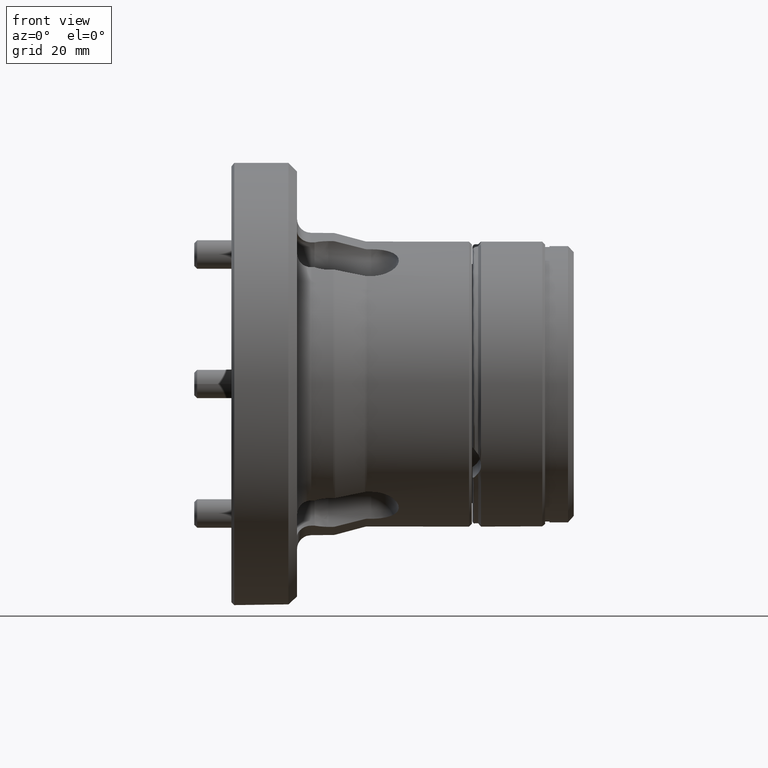
[diagram: clean part render]
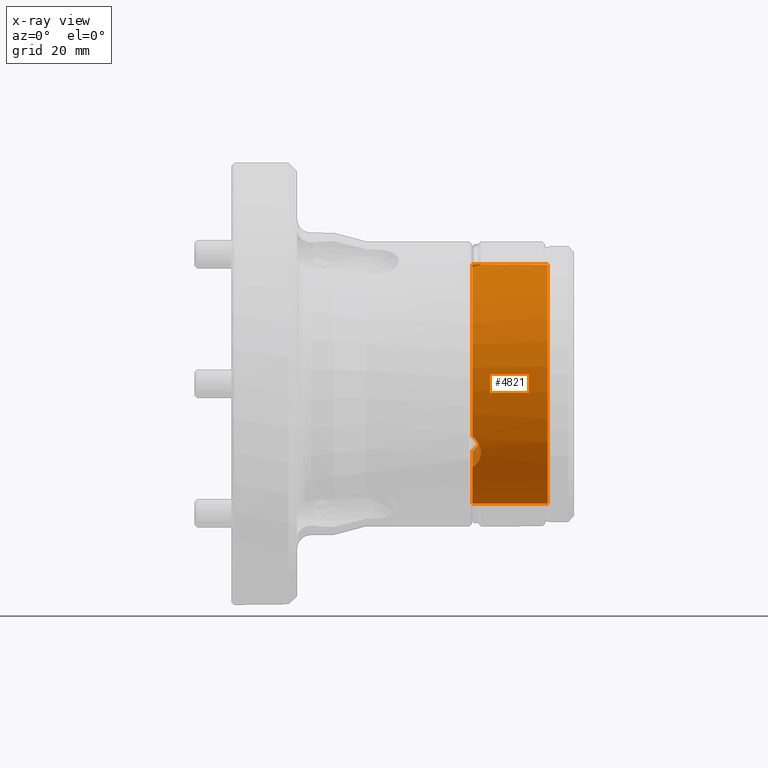
[diagram: x-ray — body ghosted, one internal face saturated and labeled with its STEP entity id]
A machine part, front view, then the same camera in x-ray: the body is ghosted and one INTERNAL B-rep face — a face not visible from any outside direction — is saturated and labeled: STEP entity #4821.
In plain terms, the highlighted cylindrical surface (bore or boss wall) has radius 42 mm, axis along (-1, 0, 0).
Its self-contained STEP definition (entity closure, byte-faithful):
#107 = VERTEX_POINT ( 'NONE', #5242 ) ;
#246 = DIRECTION ( 'NONE',  ( 2.292773743318137985E-32, -1.000000000000000000, 0.0000000000000000000 ) ) ;
#256 = CARTESIAN_POINT ( 'NONE',  ( 8.673617379884043361E-16, 2.839378726258164676, 41.90391304459373600 ) ) ;
#339 = VERTEX_POINT ( 'NONE', #4466 ) ;
#390 = CARTESIAN_POINT ( 'NONE',  ( 2.667878591648814801, 36.97720616076283306, -19.92605619728466237 ) ) ;
#391 = CARTESIAN_POINT ( 'NONE',  ( 2.665506820440516567, 39.03602933637022687, -15.50979453677652131 ) ) ;
#397 = CARTESIAN_POINT ( 'NONE',  ( 1.937701639174540746, 39.62537986844854032, -13.92479757405781271 ) ) ;
#404 = CARTESIAN_POINT ( 'NONE',  ( 2.082533809798257973, 39.53375153719124313, -14.18309676424087229 ) ) ;
#465 = EDGE_CURVE ( 'NONE', #2198, #2198, #2682, .T. ) ;
#543 = CARTESIAN_POINT ( 'NONE',  ( 8.673617379884045333E-16, -37.70954257772128670, -18.49298241439236890 ) ) ;
#588 = CARTESIAN_POINT ( 'NONE',  ( 8.673617379884045333E-16, -37.70954257772128670, -18.49298241439236890 ) ) ;
#861 = EDGE_LOOP ( 'NONE', ( #2481 ) ) ;
#1008 = CARTESIAN_POINT ( 'NONE',  ( 1.450134893889020837, 1.248693292809842204, 41.98214647024642687 ) ) ;
#1086 = AXIS2_PLACEMENT_3D ( 'NONE', #3584, #3583, #3596 ) ;
#1170 = EDGE_CURVE ( 'NONE', #2092, #2636, #4520, .T. ) ;
#1291 = EDGE_CURVE ( 'NONE', #2636, #1565, #4014, .T. ) ;
#1445 = CARTESIAN_POINT ( 'NONE',  ( 1.618605562965832467, -8.275542649421765873, 41.17749520132245777 ) ) ;
#1456 = CARTESIAN_POINT ( 'NONE',  ( 8.673617379884045333E-16, 34.87016385146309716, -23.41093063020170106 ) ) ;
#1565 = VERTEX_POINT ( 'NONE', #2293 ) ;
#1582 = EDGE_CURVE ( 'NONE', #107, #339, #5772, .T. ) ;
#1769 = CARTESIAN_POINT ( 'NONE',  ( 0.0000000000000000000, 0.0000000000000000000, 0.0000000000000000000 ) ) ;
#1815 = CIRCLE ( 'NONE', #5402, 42.00000000000000000 ) ;
#1827 = CARTESIAN_POINT ( 'NONE',  ( 8.673617379884047305E-16, -10.07278032066444595, 40.77424550634426481 ) ) ;
#1844 = CARTESIAN_POINT ( 'NONE',  ( 0.8911029787517211753, -9.243289776285394055, 40.97317452265481563 ) ) ;
#1878 = AXIS2_PLACEMENT_3D ( 'NONE', #4852, #4865, #4870 ) ;
#1970 = CARTESIAN_POINT ( 'NONE',  ( 0.2357406689790666476, -37.62038403959162736, -18.67478801039787228 ) ) ;
#1993 = CARTESIAN_POINT ( 'NONE',  ( 0.4714787261891488779, -9.679620158274744313, 40.87137093190173687 ) ) ;
#2012 = CARTESIAN_POINT ( 'NONE',  ( 8.673617379884045333E-16, 1.882228669079012936E-47, 0.0000000000000000000 ) ) ;
#2092 = VERTEX_POINT ( 'NONE', #3871 ) ;
#2198 = VERTEX_POINT ( 'NONE', #4189 ) ;
#2241 = CARTESIAN_POINT ( 'NONE',  ( 2.999842173055811578, -3.970111018524689062, 41.81306140658697501 ) ) ;
#2265 = CARTESIAN_POINT ( 'NONE',  ( 2.983166283999587165, -4.274655597858379785, 41.78301992225243566 ) ) ;
#2291 = CARTESIAN_POINT ( 'NONE',  ( 1.937701639174542301, -7.753461492534477806, 41.27898438771378409 ) ) ;
#2293 = CARTESIAN_POINT ( 'NONE',  ( 8.673617379884047305E-16, -10.07278032066444595, 40.77424550634426481 ) ) ;
#2300 = CARTESIAN_POINT ( 'NONE',  ( 2.866657498069982601, 37.39362463275006832, -19.12608714774698981 ) ) ;
#2301 = CARTESIAN_POINT ( 'NONE',  ( 2.983794661136925708, 37.80462560371881153, -18.30040205193384040 ) ) ;
#2325 = FACE_OUTER_BOUND ( 'NONE', #861, .T. ) ;
#2336 = CARTESIAN_POINT ( 'NONE',  ( 1.080770530970819321, 1.737698533473676088, 41.96475021962477570 ) ) ;
#2337 = CARTESIAN_POINT ( 'NONE',  ( 2.468987220615908473, -6.659887958487420434, 41.47236272619583985 ) ) ;
#2379 = CARTESIAN_POINT ( 'NONE',  ( 3.000155603421378991, -3.359633059515569897, 41.86653498196184842 ) ) ;
#2403 = CARTESIAN_POINT ( 'NONE',  ( 2.082533809798260194, -7.483953666430347873, 41.32878152023011609 ) ) ;
#2417 = CARTESIAN_POINT ( 'NONE',  ( 2.916450287883300962, -4.882352779537368015, 41.71637646823834444 ) ) ;
#2432 = CARTESIAN_POINT ( 'NONE',  ( 2.865977059322940335, -5.187291661979335444, 41.67953134866449005 ) ) ;
#2437 = CARTESIAN_POINT ( 'NONE',  ( 2.665506820440519675, -6.086138591859743485, 41.56109033655945950 ) ) ;
#2445 = CARTESIAN_POINT ( 'NONE',  ( 1.446118673656848763, -8.525466339185417297, 41.12634536142853392 ) ) ;
#2481 = ORIENTED_EDGE ( 'NONE', *, *, #465, .F. ) ;
#2534 = ORIENTED_EDGE ( 'NONE', *, *, #6066, .T. ) ;
#2574 = ORIENTED_EDGE ( 'NONE', *, *, #1170, .T. ) ;
#2589 = CARTESIAN_POINT ( 'NONE',  ( 0.8830160998043133924, -37.31968716712412260, -19.26892926355393243 ) ) ;
#2608 = CARTESIAN_POINT ( 'NONE',  ( 1.621744383212700757, -36.86081485233482624, -20.13330873628357764 ) ) ;
#2616 = CARTESIAN_POINT ( 'NONE',  ( 1.450134893889021059, -36.98195199503744135, -19.90967312201482642 ) ) ;
#2625 = CARTESIAN_POINT ( 'NONE',  ( 2.084229441425580198, -36.46869299896007988, -20.83538154775251527 ) ) ;
#2636 = VERTEX_POINT ( 'NONE', #588 ) ;
#2640 = CARTESIAN_POINT ( 'NONE',  ( 1.938433398632788407, -36.60462905098884789, -20.59541027239139410 ) ) ;
#2642 = CARTESIAN_POINT ( 'NONE',  ( 2.667878591648815689, -35.74507394446607123, -22.06017179755306046 ) ) ;
#2665 = B_SPLINE_CURVE_WITH_KNOTS ( 'NONE', 3,
 ( #1827, #1993, #1844, #2445, #1445, #2291, #2403, #2337, #2437, #2432, #2417, #2265, #2241, #2379, #3949, #3972, #3959, #3999, #3980, #4007, #4042, #4031, #1008, #2336, #4258, #4101, #4069, #3555 ),
 .UNSPECIFIED., .F., .F.,
 ( 4, 2, 2, 2, 2, 2, 2, 2, 2, 2, 2, 2, 2, 4 ),
 ( 4.276072667970783845E-18, 0.001838371371957674182, 0.002757557057936509213, 0.003676742743915341425, 0.005515114115873006283, 0.006434299801851839362, 0.007353485487830670707, 0.008272671173809500317, 0.009191856859788332529, 0.01103022823174599869, 0.01194941391772483263, 0.01286859960370366658, 0.01378778528968250053, 0.01470697097566133274 ),
 .UNSPECIFIED. ) ;
#2682 = CIRCLE ( 'NONE', #1878, 42.00000000000000000 ) ;
#2728 = CARTESIAN_POINT ( 'NONE',  ( 1.080770530970819765, -37.21138902040038943, -19.47748403570538756 ) ) ;
#2738 = ORIENTED_EDGE ( 'NONE', *, *, #1291, .T. ) ;
#2740 = CARTESIAN_POINT ( 'NONE',  ( 2.916450287883301851, -33.68626538556096506, -25.08642977143625785 ) ) ;
#2760 = CARTESIAN_POINT ( 'NONE',  ( 2.983166283999588497, -34.04782890057260403, -24.59347030130108891 ) ) ;
#2763 = ORIENTED_EDGE ( 'NONE', *, *, #3825, .T. ) ;
#2766 = CARTESIAN_POINT ( 'NONE',  ( 2.468987220615906253, -32.58617569660459878, -26.50381352150625958 ) ) ;
#2767 = CARTESIAN_POINT ( 'NONE',  ( 2.865977059322939446, -33.50188713478353719, -25.33209203044570756 ) ) ;
#2774 = CARTESIAN_POINT ( 'NONE',  ( 2.082533809798256641, -32.04979787076083397, -27.14568475598957775 ) ) ;
#2784 = CARTESIAN_POINT ( 'NONE',  ( 2.665506820440517455, -32.94989074451044786, -26.05129579978327570 ) ) ;
#2794 = CARTESIAN_POINT ( 'NONE',  ( 1.618605562965829803, -31.52298558384605087, -27.75557776516221509 ) ) ;
#2797 = ORIENTED_EDGE ( 'NONE', *, *, #4985, .T. ) ;
#2800 = CARTESIAN_POINT ( 'NONE',  ( 2.472392160020417506, -36.04634480654520701, -21.56329750430013092 ) ) ;
#2801 = CARTESIAN_POINT ( 'NONE',  ( 2.917183567637133379, -35.09237911302852098, -23.07854762517032299 ) ) ;
#2809 = CARTESIAN_POINT ( 'NONE',  ( 2.866657498069981713, -35.26048966131878615, -22.82078529766794261 ) ) ;
#2816 = CARTESIAN_POINT ( 'NONE',  ( 8.673617379884045333E-16, 1.882228669079012936E-47, 0.0000000000000000000 ) ) ;
#2821 = CARTESIAN_POINT ( 'NONE',  ( 3.000155603421379880, -34.57766633305094928, -23.84279506791560266 ) ) ;
#2828 = ORIENTED_EDGE ( 'NONE', *, *, #1582, .T. ) ;
#2832 = CARTESIAN_POINT ( 'NONE',  ( 2.983794661136927040, -34.75092587830275903, -23.58956512741350409 ) ) ;
#2839 = CARTESIAN_POINT ( 'NONE',  ( 2.999842173055812466, -34.22611787884055445, -24.34474770118054465 ) ) ;
#2840 = CARTESIAN_POINT ( 'NONE',  ( 0.4607855944670077863, -37.52411223118008365, -18.86774195492550987 ) ) ;
#2878 = CARTESIAN_POINT ( 'NONE',  ( 1.446118673656844544, -31.35372667821658510, -27.94644310955810695 ) ) ;
#2917 = CARTESIAN_POINT ( 'NONE',  ( 1.937701639174540080, -31.87191837591399945, -27.35418681365631954 ) ) ;
#2934 = CARTESIAN_POINT ( 'NONE',  ( 0.4714787261891490444, -30.55583543538624269, -28.81848242200087640 ) ) ;
#2954 = CARTESIAN_POINT ( 'NONE',  ( 8.673617379884043361E-16, -30.27514226830526667, -29.11040639760764037 ) ) ;
#2974 = CARTESIAN_POINT ( 'NONE',  ( 0.8911029787517164014, -30.86216512216957852, -28.49151102213168940 ) ) ;
#3555 = CARTESIAN_POINT ( 'NONE',  ( 8.673617379884043361E-16, 2.839378726258164676, 41.90391304459373600 ) ) ;
#3583 = DIRECTION ( 'NONE',  ( -1.000000000000000000, -2.170061909168716300E-32, -0.0000000000000000000 ) ) ;
#3584 = CARTESIAN_POINT ( 'NONE',  ( 8.673617379884045333E-16, 1.882228669079012936E-47, 0.0000000000000000000 ) ) ;
#3596 = DIRECTION ( 'NONE',  ( 2.292773743318137985E-32, -1.000000000000000000, 0.0000000000000000000 ) ) ;
#3670 = VERTEX_POINT ( 'NONE', #256 ) ;
#3765 = EDGE_LOOP ( 'NONE', ( #2534, #2574, #2738, #2763, #2797, #2828 ) ) ;
#3825 = EDGE_CURVE ( 'NONE', #1565, #3670, #2665, .T. ) ;
#3835 = DIRECTION ( 'NONE',  ( -1.000000000000000000, -2.170061909168716300E-32, -0.0000000000000000000 ) ) ;
#3871 = CARTESIAN_POINT ( 'NONE',  ( 8.673617379884043361E-16, -30.27514226830526667, -29.11040639760764037 ) ) ;
#3949 = CARTESIAN_POINT ( 'NONE',  ( 2.983794661136925264, -3.053699725416024968, 41.88996717934701053 ) ) ;
#3957 = CARTESIAN_POINT ( 'NONE',  ( 1.621744383212698981, 35.86636425402397066, -21.85574769817525720 ) ) ;
#3959 = CARTESIAN_POINT ( 'NONE',  ( 2.866657498069980825, -2.133134971431279059, 41.94687244541460558 ) ) ;
#3972 = CARTESIAN_POINT ( 'NONE',  ( 2.917183567637132935, -2.440418969332065480, 41.93016560370231360 ) ) ;
#3980 = CARTESIAN_POINT ( 'NONE',  ( 2.472392160020416174, -0.6511910248127064094, 41.99869906819146337 ) ) ;
#3999 = CARTESIAN_POINT ( 'NONE',  ( 2.667878591648814801, -1.232132216296744520, 41.98622799483738532 ) ) ;
#4007 = CARTESIAN_POINT ( 'NONE',  ( 2.084229441425579754, 0.1903767815850195555, 42.00050535379139660 ) ) ;
#4014 = CIRCLE ( 'NONE', #1086, 42.00000000000000000 ) ;
#4031 = CARTESIAN_POINT ( 'NONE',  ( 1.621744383212697871, 0.9944505983108624658, 41.98905643445849734 ) ) ;
#4040 = DIRECTION ( 'NONE',  ( -1.000000000000000000, -2.170061909168716300E-32, -0.0000000000000000000 ) ) ;
#4042 = CARTESIAN_POINT ( 'NONE',  ( 1.938433398632785964, 0.4661660282406824285, 41.99824379045790579 ) ) ;
#4069 = CARTESIAN_POINT ( 'NONE',  ( 0.2357406689790706444, 2.637351192502400021, 41.91760228361190599 ) ) ;
#4101 = CARTESIAN_POINT ( 'NONE',  ( 0.4607855944670072867, 2.422112270575273119, 41.93070542412307589 ) ) ;
#4189 = CARTESIAN_POINT ( 'NONE',  ( 26.40000000000000213, -42.00000000000000000, 0.0000000000000000000 ) ) ;
#4203 = CARTESIAN_POINT ( 'NONE',  ( 2.468987220615905809, 39.24606365509207961, -14.96854920468990713 ) ) ;
#4223 = CARTESIAN_POINT ( 'NONE',  ( 0.8911029787517168455, 40.10545489845505784, -12.48166350052346552 ) ) ;
#4234 = CARTESIAN_POINT ( 'NONE',  ( 1.446118673656845210, 39.87919301740207345, -13.17990225187076447 ) ) ;
#4258 = CARTESIAN_POINT ( 'NONE',  ( 0.8830160998043135034, 1.972461337599184183, 41.95426177979456384 ) ) ;
#4280 = CARTESIAN_POINT ( 'NONE',  ( 1.450134893889020837, 35.73325870222757317, -22.07247334823194151 ) ) ;
#4302 = FACE_OUTER_BOUND ( 'NONE', #3765, .T. ) ;
#4371 = CIRCLE ( 'NONE', #4757, 42.00000000000000000 ) ;
#4466 = CARTESIAN_POINT ( 'NONE',  ( 8.673617379884045333E-16, 34.87016385146309716, -23.41093063020170106 ) ) ;
#4520 = B_SPLINE_CURVE_WITH_KNOTS ( 'NONE', 3,
 ( #2954, #2934, #2974, #2878, #2794, #2917, #2774, #2766, #2784, #2767, #2740, #2760, #2839, #2821, #2832, #2801, #2809, #2642, #2800, #2625, #2640, #2608, #2616, #2728, #2589, #2840, #1970, #543 ),
 .UNSPECIFIED., .F., .F.,
 ( 4, 2, 2, 2, 2, 2, 2, 2, 2, 2, 2, 2, 2, 4 ),
 ( 0.0000000000000000000, 0.001838371371957681771, 0.002757557057936519188, 0.003676742743915357037, 0.005515114115873020161, 0.006434299801851848036, 0.007353485487830675044, 0.008272671173809502052, 0.009191856859788330794, 0.01103022823174600563, 0.01194941391772483784, 0.01286859960370367005, 0.01378778528968250226, 0.01470697097566133621 ),
 .UNSPECIFIED. ) ;
#4714 = DIRECTION ( 'NONE',  ( -1.000000000000000000, -2.170061909168716300E-32, -0.0000000000000000000 ) ) ;
#4757 = AXIS2_PLACEMENT_3D ( 'NONE', #2012, #4040, #5838 ) ;
#4821 = ADVANCED_FACE ( 'NONE', ( #2325, #4302 ), #6056, .F. ) ;
#4852 = CARTESIAN_POINT ( 'NONE',  ( 26.40000000000000213, 5.728963440205411908E-31, 0.0000000000000000000 ) ) ;
#4865 = DIRECTION ( 'NONE',  ( -1.000000000000000000, -2.170061909168716300E-32, -0.0000000000000000000 ) ) ;
#4870 = DIRECTION ( 'NONE',  ( 0.0000000000000000000, -1.000000000000000000, 0.0000000000000000000 ) ) ;
#4942 = AXIS2_PLACEMENT_3D ( 'NONE', #1769, #3835, #5653 ) ;
#4985 = EDGE_CURVE ( 'NONE', #3670, #107, #1815, .T. ) ;
#5154 = CARTESIAN_POINT ( 'NONE',  ( 3.000155603421378547, 37.93729939256653694, -18.02373991404657971 ) ) ;
#5159 = CARTESIAN_POINT ( 'NONE',  ( 2.999842173055811578, 38.19622889736529459, -17.46831370540678208 ) ) ;
#5160 = CARTESIAN_POINT ( 'NONE',  ( 2.472392160020417506, 36.69753583135790365, -20.43540156389168061 ) ) ;
#5242 = CARTESIAN_POINT ( 'NONE',  ( 8.673617379884045333E-16, 40.34792258896979433, -11.66383910873694774 ) ) ;
#5246 = CARTESIAN_POINT ( 'NONE',  ( 8.673617379884045333E-16, 40.34792258896979433, -11.66383910873694774 ) ) ;
#5252 = CARTESIAN_POINT ( 'NONE',  ( 0.2357406689790683685, 34.98303284708920557, -23.24281427321438187 ) ) ;
#5257 = CARTESIAN_POINT ( 'NONE',  ( 0.4714787261891490444, 40.23545559366107227, -12.05288850990117844 ) ) ;
#5263 = CARTESIAN_POINT ( 'NONE',  ( 2.916450287883299186, 38.56861816509838548, -16.62994669680243121 ) ) ;
#5275 = CARTESIAN_POINT ( 'NONE',  ( 1.618605562965829581, 39.79852823326788780, -13.42191743616058730 ) ) ;
#5276 = CARTESIAN_POINT ( 'NONE',  ( 2.983166283999586277, 38.32248449843101668, -17.18954962095168071 ) ) ;
#5281 = CARTESIAN_POINT ( 'NONE',  ( 2.865977059322939446, 38.68917879676291705, -16.34743931821910579 ) ) ;
#5288 = CARTESIAN_POINT ( 'NONE',  ( 1.938433398632786631, 36.13846302274816225, -21.40283351806684209 ) ) ;
#5306 = CARTESIAN_POINT ( 'NONE',  ( 2.917183567637132047, 37.53279808236061399, -18.85161797853232457 ) ) ;
#5402 = AXIS2_PLACEMENT_3D ( 'NONE', #2816, #4714, #246 ) ;
#5653 = DIRECTION ( 'NONE',  ( 2.170061909168716574E-32, -1.000000000000000000, 0.0000000000000000000 ) ) ;
#5772 = B_SPLINE_CURVE_WITH_KNOTS ( 'NONE', 3,
 ( #5246, #5257, #4223, #4234, #5275, #397, #404, #4203, #391, #5281, #5263, #5276, #5159, #5154, #2301, #5306, #2300, #390, #5160, #6118, #5288, #3957, #4280, #5856, #5833, #5850, #5252, #1456 ),
 .UNSPECIFIED., .F., .F.,
 ( 4, 2, 2, 2, 2, 2, 2, 2, 2, 2, 2, 2, 2, 4 ),
 ( 2.533311461950233709E-18, 0.001838371371957673748, 0.002757557057936509213, 0.003676742743915344894, 0.005515114115873019293, 0.006434299801851852373, 0.007353485487830685452, 0.008272671173809515929, 0.009191856859788349876, 0.01103022823174600389, 0.01194941391772483784, 0.01286859960370367005, 0.01378778528968250226, 0.01470697097566133447 ),
 .UNSPECIFIED. ) ;
#5833 = CARTESIAN_POINT ( 'NONE',  ( 0.8830160998043121712, 35.34722582952493042, -22.68533251624097957 ) ) ;
#5838 = DIRECTION ( 'NONE',  ( 2.292773743318137985E-32, -1.000000000000000000, 0.0000000000000000000 ) ) ;
#5850 = CARTESIAN_POINT ( 'NONE',  ( 0.4607855944670061765, 35.10199996060478611, -23.06296346919788931 ) ) ;
#5856 = CARTESIAN_POINT ( 'NONE',  ( 1.080770530970819543, 35.47369048692669935, -22.48726618391971499 ) ) ;
#6056 = CYLINDRICAL_SURFACE ( 'NONE', #4942, 42.00000000000000000 ) ;
#6066 = EDGE_CURVE ( 'NONE', #339, #2092, #4371, .T. ) ;
#6118 = CARTESIAN_POINT ( 'NONE',  ( 2.084229441425580642, 36.27831621737505685, -21.16512380603921883 ) ) ;